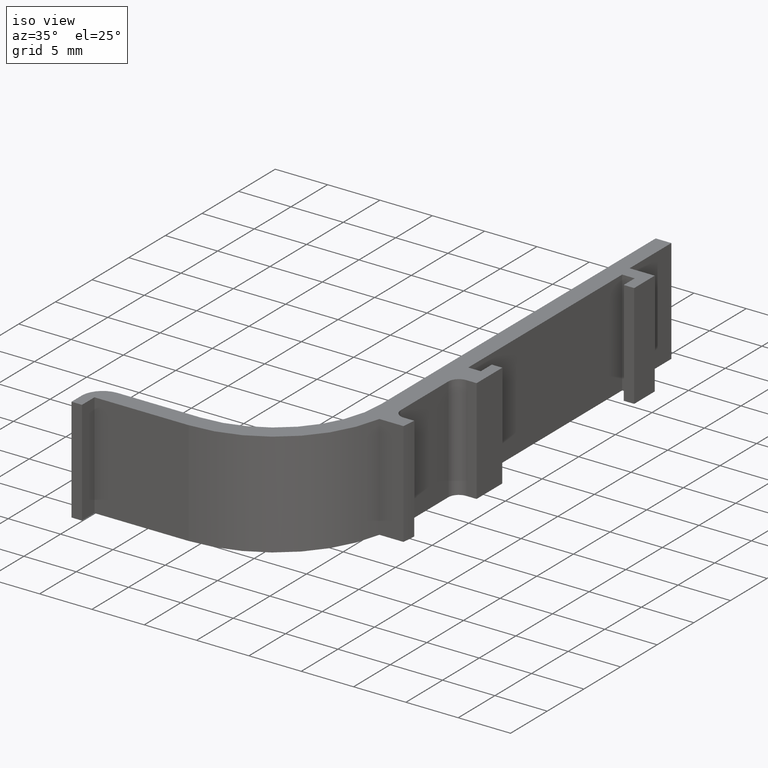
[diagram: clean part render]
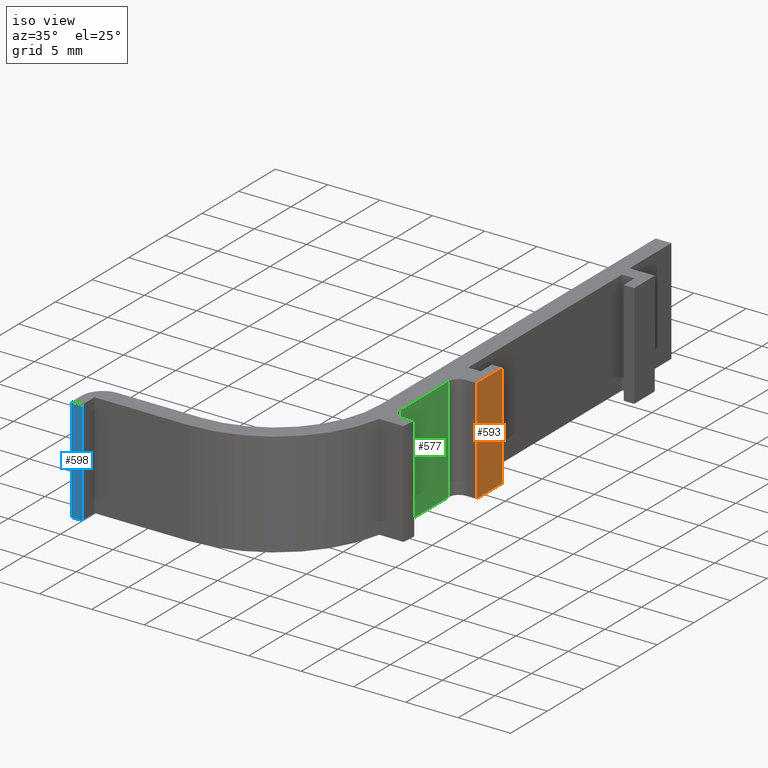
[diagram: same view with three faces highlighted in distinct colors, each labeled with its STEP entity id]
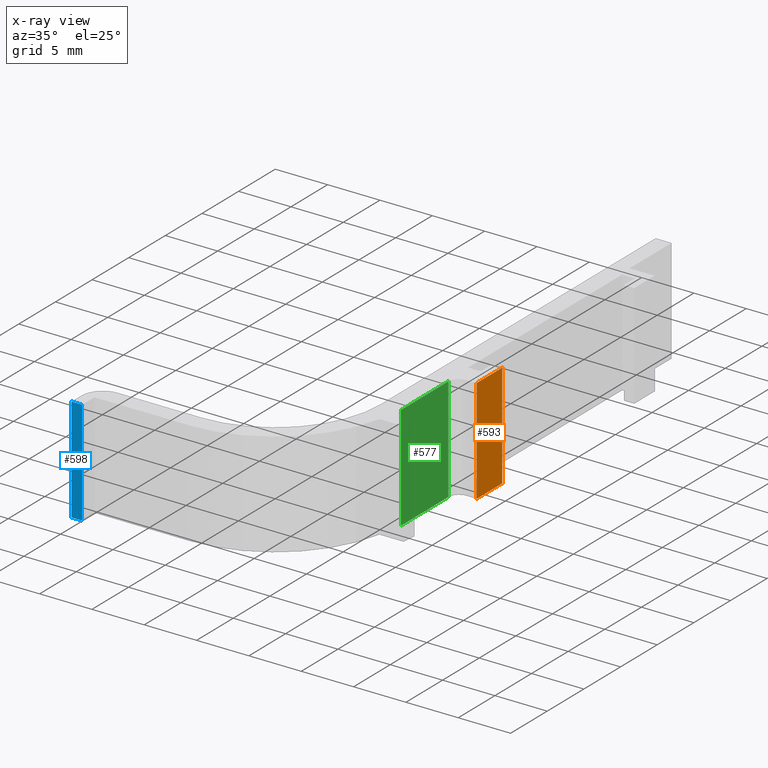
[diagram: x-ray of the same camera — body ghosted, the three highlighted faces saturated]
A machine part, iso view with three faces highlighted in distinct colors.
The next image is the same camera in x-ray (body ghosted, the three faces saturated) — at least one of them is partly hidden behind the body in this view.
Their STEP definitions:

[orange] entity #593 — the highlighted planar face has unit normal (1, 0, 0).
#57=FACE_OUTER_BOUND('',#87,.T.);
#87=EDGE_LOOP('',(#521,#522,#523,#524));
#100=LINE('',#827,#172);
#140=LINE('',#917,#212);
#149=LINE('',#937,#221);
#161=LINE('',#962,#233);
#172=VECTOR('',#664,3.5);
#212=VECTOR('',#724,3.5);
#221=VECTOR('',#747,10.);
#233=VECTOR('',#785,10.);
#247=VERTEX_POINT('',#824);
#248=VERTEX_POINT('',#826);
#287=VERTEX_POINT('',#914);
#288=VERTEX_POINT('',#916);
#304=EDGE_CURVE('',#248,#247,#100,.T.);
#350=EDGE_CURVE('',#288,#287,#140,.T.);
#361=EDGE_CURVE('',#288,#247,#149,.T.);
#373=EDGE_CURVE('',#287,#248,#161,.T.);
#521=ORIENTED_EDGE('',*,*,#304,.T.);
#522=ORIENTED_EDGE('',*,*,#361,.F.);
#523=ORIENTED_EDGE('',*,*,#350,.T.);
#524=ORIENTED_EDGE('',*,*,#373,.T.);
#564=PLANE('',#637);
#593=ADVANCED_FACE('',(#57),#564,.T.);
#637=AXIS2_PLACEMENT_3D('',#963,#786,#787);
#664=DIRECTION('',(3.1720657846433E-16,-1.,0.));
#724=DIRECTION('',(-3.1720657846433E-16,1.,0.));
#747=DIRECTION('',(0.,0.,1.));
#785=DIRECTION('',(0.,0.,1.));
#786=DIRECTION('center_axis',(1.,3.1720657846433E-16,0.));
#787=DIRECTION('ref_axis',(0.,0.,-1.));
#824=CARTESIAN_POINT('',(4.,17.5,5.));
#826=CARTESIAN_POINT('',(4.,21.,5.));
#827=CARTESIAN_POINT('',(4.,17.5,5.));
#914=CARTESIAN_POINT('',(4.,21.,-5.));
#916=CARTESIAN_POINT('',(4.,17.5,-5.));
#917=CARTESIAN_POINT('',(4.,17.5,-5.));
#937=CARTESIAN_POINT('',(4.,17.5,0.));
#962=CARTESIAN_POINT('',(4.,21.,0.));
#963=CARTESIAN_POINT('Origin',(4.,21.,0.));

[blue] entity #598 — the highlighted planar face has unit normal (0, -1, 0).
#62=FACE_OUTER_BOUND('',#92,.T.);
#92=EDGE_LOOP('',(#541,#542,#543,#544));
#115=LINE('',#861,#187);
#126=LINE('',#889,#198);
#152=LINE('',#943,#224);
#164=LINE('',#970,#236);
#187=VECTOR('',#683,0.999999999999999);
#198=VECTOR('',#708,0.999999999999999);
#224=VECTOR('',#756,10.);
#236=VECTOR('',#798,10.);
#264=VERTEX_POINT('',#858);
#265=VERTEX_POINT('',#860);
#274=VERTEX_POINT('',#886);
#275=VERTEX_POINT('',#888);
#321=EDGE_CURVE('',#265,#264,#115,.T.);
#335=EDGE_CURVE('',#275,#274,#126,.T.);
#364=EDGE_CURVE('',#275,#264,#152,.T.);
#376=EDGE_CURVE('',#274,#265,#164,.T.);
#541=ORIENTED_EDGE('',*,*,#321,.T.);
#542=ORIENTED_EDGE('',*,*,#364,.F.);
#543=ORIENTED_EDGE('',*,*,#335,.T.);
#544=ORIENTED_EDGE('',*,*,#376,.T.);
#568=PLANE('',#642);
#598=ADVANCED_FACE('',(#62),#568,.T.);
#642=AXIS2_PLACEMENT_3D('',#971,#799,#800);
#683=DIRECTION('',(-1.,0.,0.));
#708=DIRECTION('',(1.,0.,0.));
#756=DIRECTION('',(0.,0.,1.));
#798=DIRECTION('',(0.,0.,1.));
#799=DIRECTION('center_axis',(0.,-1.,0.));
#800=DIRECTION('ref_axis',(0.,0.,-1.));
#858=CARTESIAN_POINT('',(-20.,-3.50000000000001,5.));
#860=CARTESIAN_POINT('',(-19.,-3.50000000000001,5.));
#861=CARTESIAN_POINT('',(-20.,-3.50000000000001,5.));
#886=CARTESIAN_POINT('',(-19.,-3.50000000000001,-5.));
#888=CARTESIAN_POINT('',(-20.,-3.50000000000001,-5.));
#889=CARTESIAN_POINT('',(-20.,-3.50000000000001,-5.));
#943=CARTESIAN_POINT('',(-20.,-3.50000000000001,0.));
#970=CARTESIAN_POINT('',(-19.,-3.50000000000001,0.));
#971=CARTESIAN_POINT('Origin',(-19.,-3.50000000000001,0.));

[green] entity #577 — the highlighted planar face has unit normal (1, 0, 0).
#41=FACE_OUTER_BOUND('',#71,.T.);
#71=EDGE_LOOP('',(#457,#458,#459,#460));
#98=LINE('',#821,#170);
#142=LINE('',#923,#214);
#145=LINE('',#930,#217);
#147=LINE('',#933,#219);
#170=VECTOR('',#660,6.5);
#214=VECTOR('',#728,6.5);
#217=VECTOR('',#737,10.);
#219=VECTOR('',#741,10.);
#244=VERTEX_POINT('',#818);
#245=VERTEX_POINT('',#820);
#290=VERTEX_POINT('',#920);
#291=VERTEX_POINT('',#922);
#301=EDGE_CURVE('',#245,#244,#98,.T.);
#353=EDGE_CURVE('',#291,#290,#142,.T.);
#357=EDGE_CURVE('',#291,#244,#145,.T.);
#359=EDGE_CURVE('',#245,#290,#147,.T.);
#457=ORIENTED_EDGE('',*,*,#357,.F.);
#458=ORIENTED_EDGE('',*,*,#353,.T.);
#459=ORIENTED_EDGE('',*,*,#359,.F.);
#460=ORIENTED_EDGE('',*,*,#301,.T.);
#550=PLANE('',#621);
#577=ADVANCED_FACE('',(#41),#550,.T.);
#621=AXIS2_PLACEMENT_3D('',#932,#739,#740);
#660=DIRECTION('',(4.89804275569922E-16,-1.,0.));
#728=DIRECTION('',(-4.89804275569922E-16,1.,0.));
#737=DIRECTION('',(0.,0.,1.));
#739=DIRECTION('center_axis',(1.,4.89804275569922E-16,0.));
#740=DIRECTION('ref_axis',(0.,0.,-1.));
#741=DIRECTION('',(0.,0.,-1.));
#818=CARTESIAN_POINT('',(2.00000000000001,10.,5.));
#820=CARTESIAN_POINT('',(2.,16.5,5.));
#821=CARTESIAN_POINT('',(2.00000000000001,9.00000000000003,5.));
#920=CARTESIAN_POINT('',(2.,16.5,-5.));
#922=CARTESIAN_POINT('',(2.00000000000001,10.,-5.));
#923=CARTESIAN_POINT('',(2.00000000000001,9.00000000000003,-5.));
#930=CARTESIAN_POINT('',(2.00000000000001,10.,0.));
#932=CARTESIAN_POINT('Origin',(2.,17.5,0.));
#933=CARTESIAN_POINT('',(2.,16.5,0.));